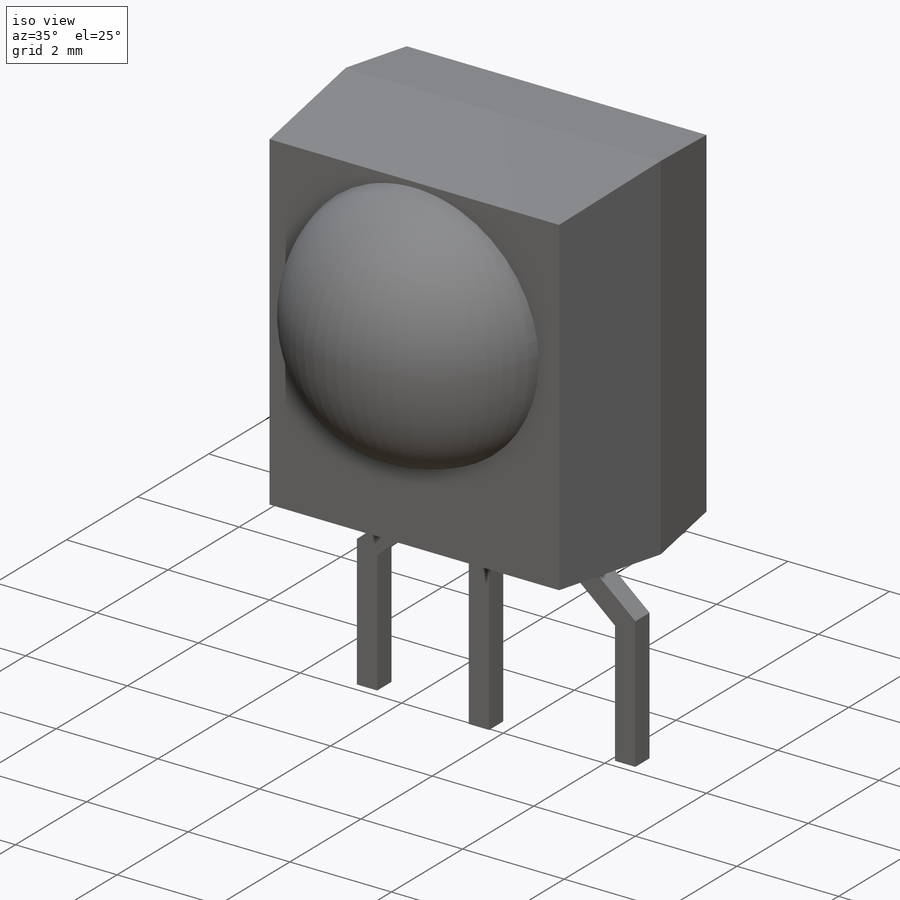
[diagram: iso view]
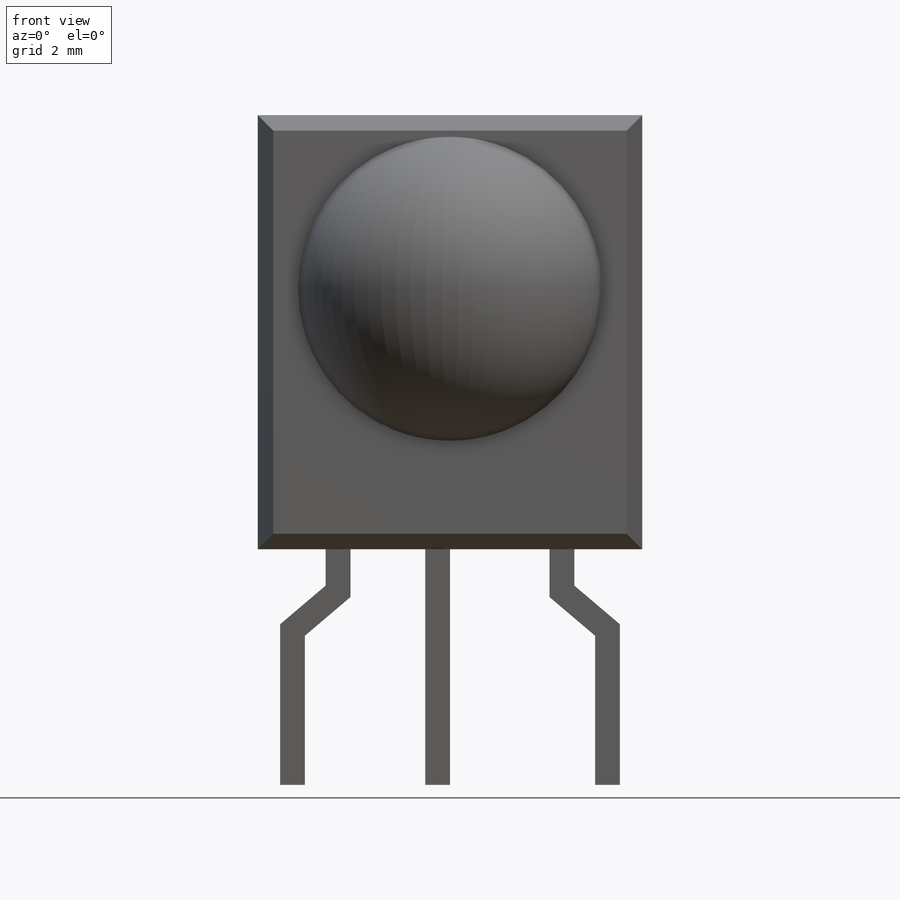
[diagram: front view]
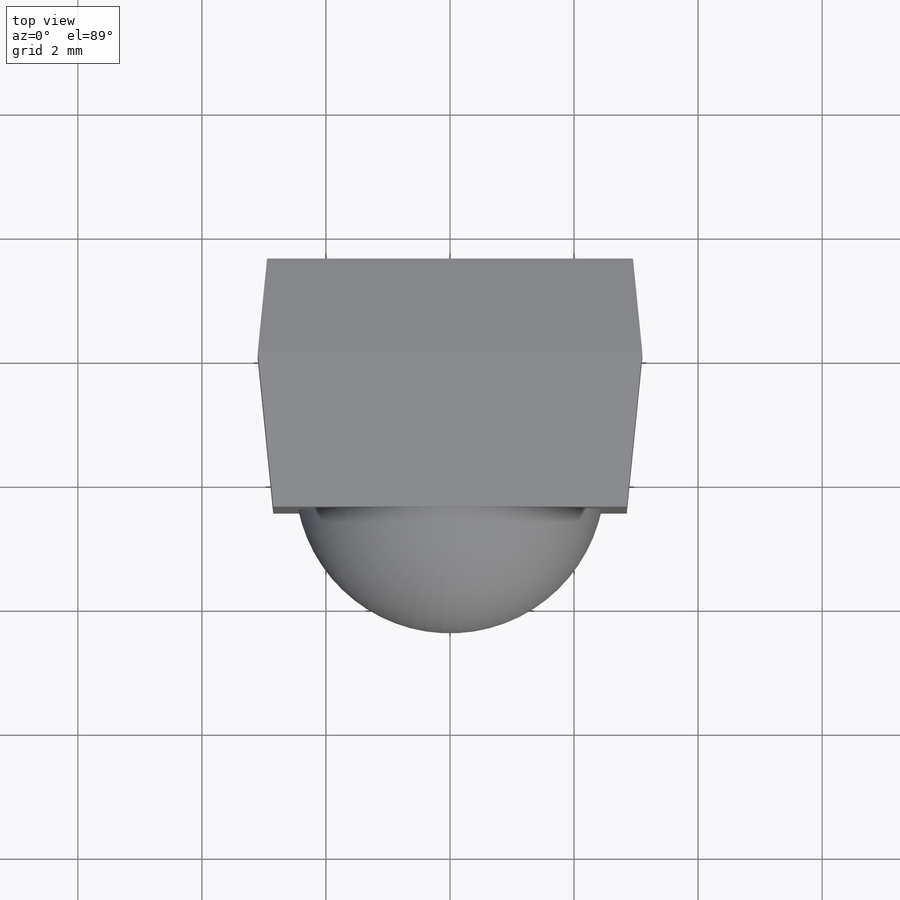
[diagram: top view]
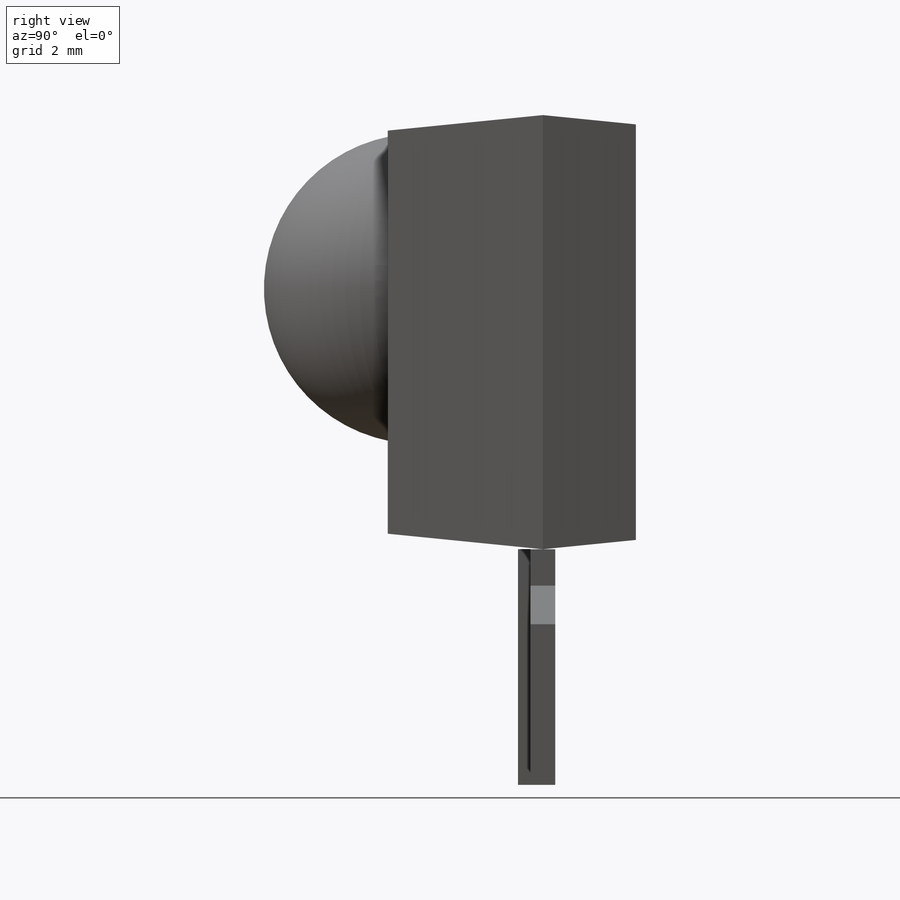
[diagram: right view]
SOLIDWORKS PART (.sldprt)
format: sldprt  version: not decoded by parser v0  size: 204,800 bytes
history: native  units: mm
features: sketch x4, plane x3, chamfer x2, mirror x2, material x1, extrude x1, revolve x1 (+8 scaffold rows collapsed)
feature tree (22):
  scaffold x8  (default folders/planes/origin — collapsed)
  material  "Matériau <non spécifié>"
  plane  "Plan de face"
  plane  "Plan de dessus"
  plane  "Plan de droite"
  sketch  "Esquisse1"  dims[c1.D1=~52.676632mm c1.D2=~37.019305mm c2.D1=6.2mm c2.D2=7.0mm]
  extrude  "Boss.-Extru.1"  Depth=2.5mm
  chamfer  "Chanfrein1"  Distance=2.5mm
  chamfer  "Chanfrein2"  Distance=0.15mm
  sketch  "Esquisse2"  dims[D1=~2.942991mm D2=0.7mm D3=2.0mm]
  revolve  "Révolution1"  Angle=360deg
  sketch  "Esquisse3"  dims[c1.D1=2.54mm c2.D1=0.4mm c2.D5=0.4mm c2.D6=10.0mm c2.D7=5.0mm]
  mirror  "Symétrie3"
  sketch  "Esquisse4"  dims[D1=3.8mm]
  mirror  "Extru.-Mince2"
decode coverage: 8 of 10 modeling features carry decoded parameters
note: ~ marks probable driven/reference dimensions
note: suppression state not decoded; provenance and decode notes live in map.json
